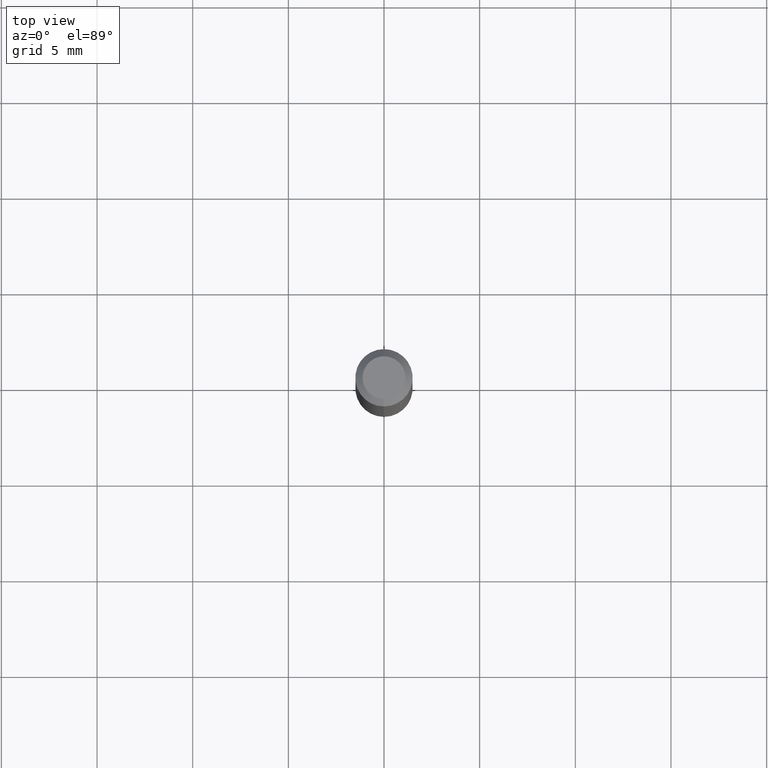
[diagram: clean part render]
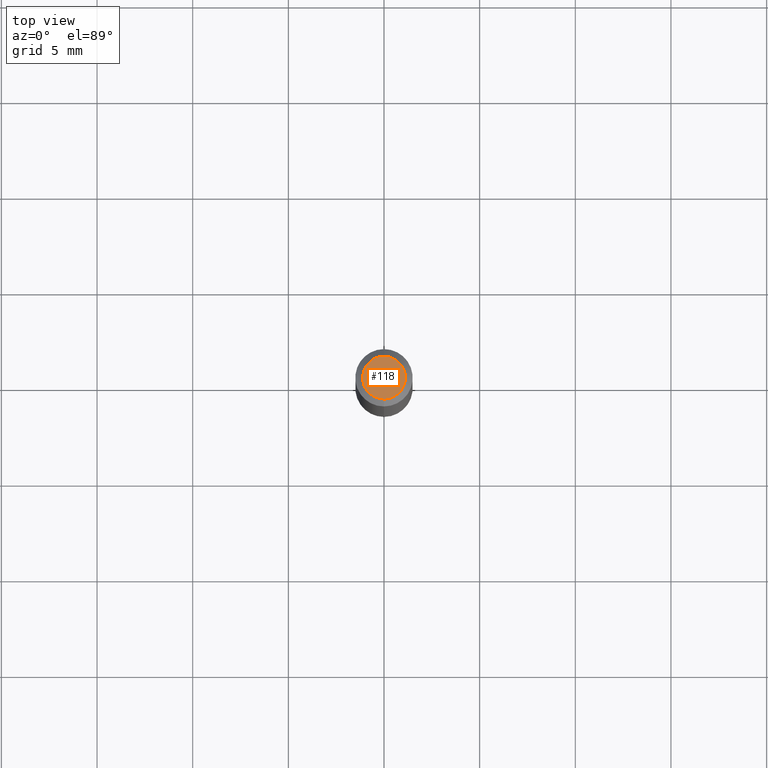
[diagram: same view with one face highlighted and labeled with its STEP entity id]
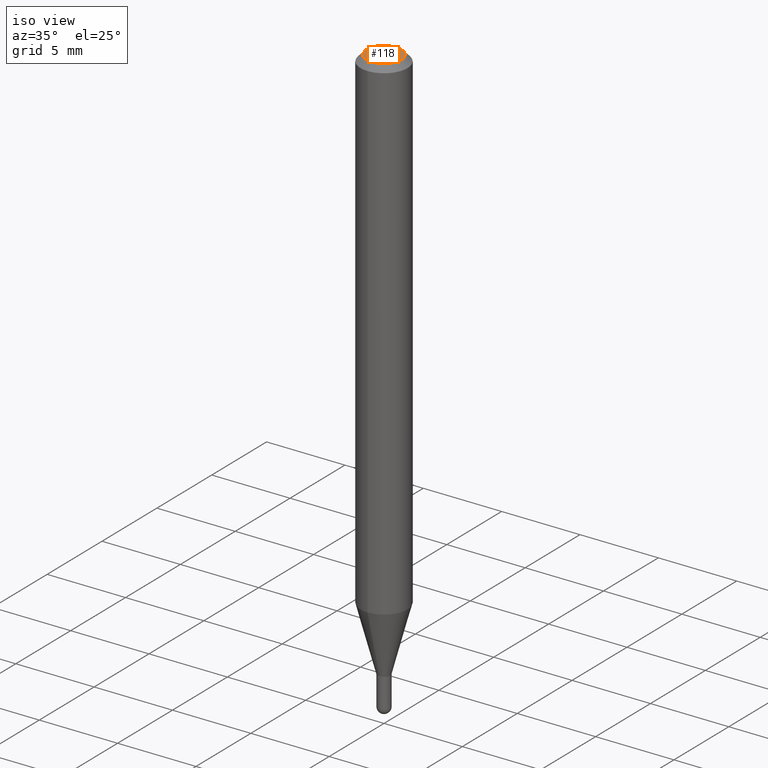
[diagram: same view with one face highlighted and labeled with its STEP entity id]
A machine part, top view. The second image highlights one B-rep face of the part: STEP entity #118.
A second angle (iso view) of the same face is appended — the face is thin or edge-on in the first view.
In plain terms, the highlighted planar face has unit normal (0, -0, -1).
Its self-contained STEP definition (entity closure, byte-faithful):
#2 = DIRECTION ( 'NONE',  ( -2.445466752382438032E-29, 3.491484280005505170E-15, 1.000000000000000000 ) ) ;
#5 = EDGE_CURVE ( 'NONE', #151, #24, #291, .T. ) ;
#10 = AXIS2_PLACEMENT_3D ( 'NONE', #398, #441, #200 ) ;
#24 = VERTEX_POINT ( 'NONE', #240 ) ;
#29 = CIRCLE ( 'NONE', #458, 0.04404999999999999888 ) ;
#78 = EDGE_CURVE ( 'NONE', #24, #151, #29, .T. ) ;
#117 = ORIENTED_EDGE ( 'NONE', *, *, #5, .T. ) ;
#118 = ADVANCED_FACE ( 'NONE', ( #336 ), #251, .F. ) ;
#151 = VERTEX_POINT ( 'NONE', #285 ) ;
#156 = DIRECTION ( 'NONE',  ( -6.982962677686265133E-15, -1.000000000000000000, 3.491484280005504776E-15 ) ) ;
#165 = DIRECTION ( 'NONE',  ( 2.445466752382437471E-29, -3.491484280005505565E-15, -1.000000000000000000 ) ) ;
#200 = DIRECTION ( 'NONE',  ( -6.982962677686265133E-15, -1.000000000000000000, 3.491484280005504776E-15 ) ) ;
#240 = CARTESIAN_POINT ( 'NONE',  ( 3.599717260347271507E-16, 0.04404999999999999888, -2.343019103179918348E-16 ) ) ;
#245 = CARTESIAN_POINT ( 'NONE',  ( 3.075995059520799729E-16, 0.04404999999999999888, -1.940508964261171454E-16 ) ) ;
#251 = PLANE ( 'NONE',  #504 ) ;
#285 = CARTESIAN_POINT ( 'NONE',  ( -3.536586717851222218E-16, -0.04404999999999999888, 7.329785475049316338E-17 ) ) ;
#291 = CIRCLE ( 'NONE', #10, 0.04404999999999999888 ) ;
#313 = CARTESIAN_POINT ( 'NONE',  ( 1.968650324445262626E-45, -2.810715645155272139E-31, -8.050202778374932957E-17 ) ) ;
#336 = FACE_OUTER_BOUND ( 'NONE', #346, .T. ) ;
#346 = EDGE_LOOP ( 'NONE', ( #393, #117 ) ) ;
#393 = ORIENTED_EDGE ( 'NONE', *, *, #78, .T. ) ;
#398 = CARTESIAN_POINT ( 'NONE',  ( 1.968650324445262626E-45, -2.810715645155272139E-31, -8.050202778374932957E-17 ) ) ;
#413 = DIRECTION ( 'NONE',  ( 6.982962677686265922E-15, 1.000000000000000000, -3.491484280005505565E-15 ) ) ;
#441 = DIRECTION ( 'NONE',  ( -2.445466752382438032E-29, 3.491484280005505170E-15, 1.000000000000000000 ) ) ;
#458 = AXIS2_PLACEMENT_3D ( 'NONE', #313, #2, #156 ) ;
#504 = AXIS2_PLACEMENT_3D ( 'NONE', #245, #165, #413 ) ;